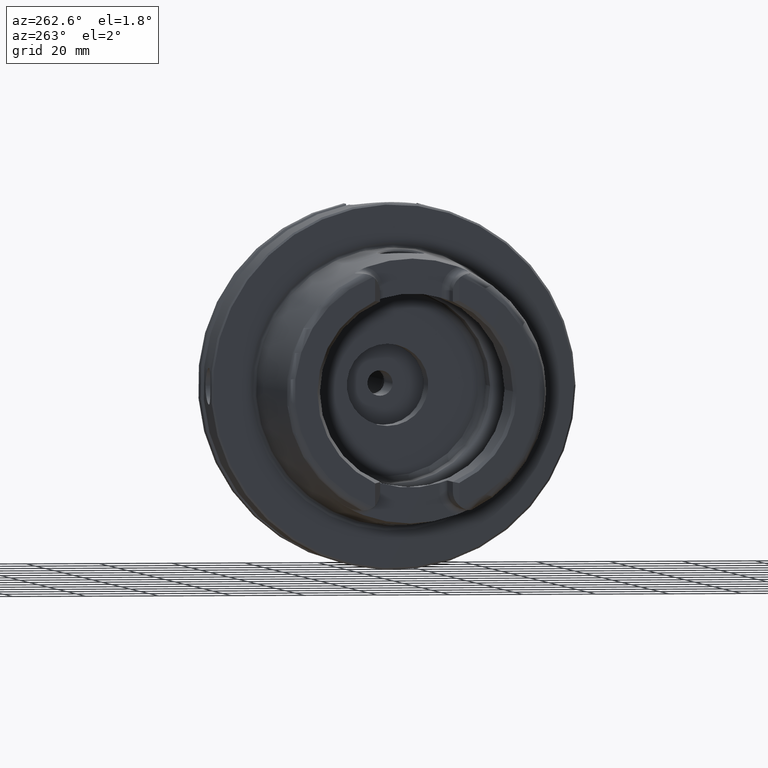
[diagram: clean part render]
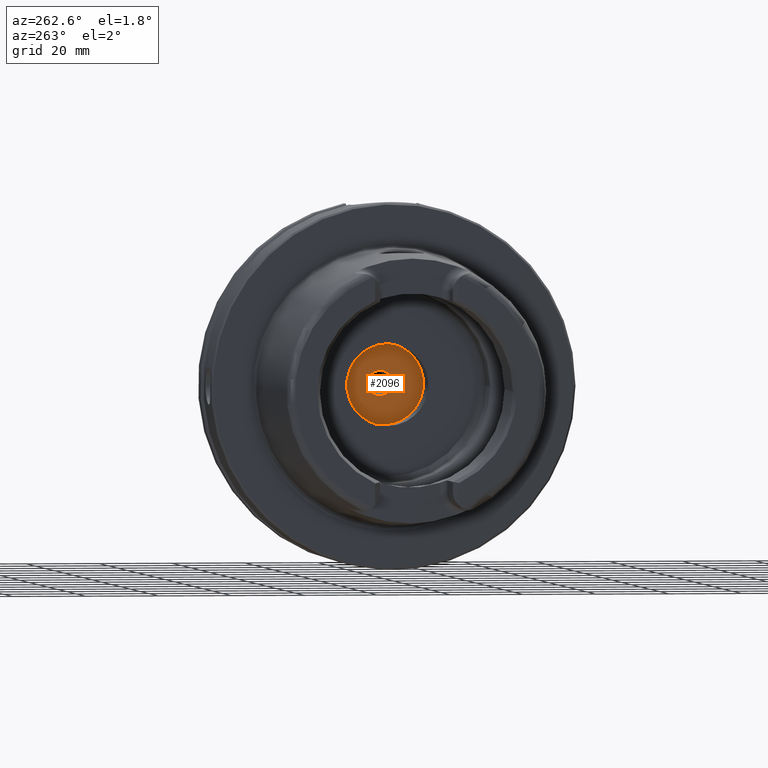
[diagram: same view with one face highlighted and labeled with its STEP entity id]
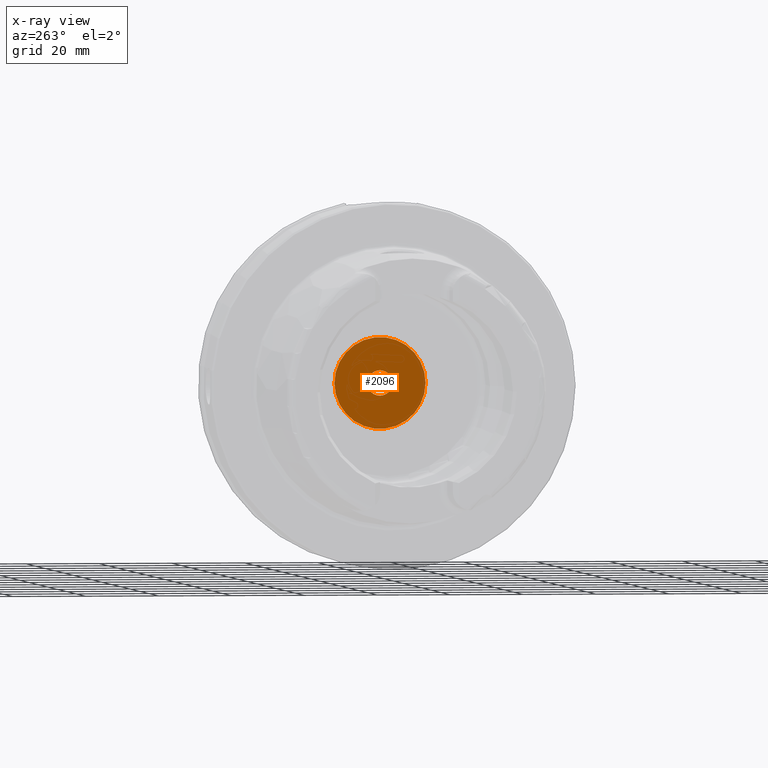
[diagram: x-ray of the same camera — body ghosted, the highlighted face saturated]
A machine part, auxiliary view. The second image highlights one B-rep face of the part: STEP entity #2096.
The next image is the same camera in x-ray: the body ghosted, the highlighted face saturated — about 0% of this face is hidden behind the body in this view.
In plain terms, the highlighted planar face has unit normal (1, 0, 0).
Its self-contained STEP definition (entity closure, byte-faithful):
#95=FACE_BOUND('',#444,.T.);
#132=PLANE('',#2360);
#312=FACE_OUTER_BOUND('',#443,.T.);
#443=EDGE_LOOP('',(#1892));
#444=EDGE_LOOP('',(#1893));
#704=CIRCLE('',#2181,3.4585);
#792=CIRCLE('',#2361,12.5);
#847=VERTEX_POINT('',#3129);
#1009=VERTEX_POINT('',#4503);
#1065=EDGE_CURVE('',#847,#847,#704,.T.);
#1312=EDGE_CURVE('',#1009,#1009,#792,.T.);
#1892=ORIENTED_EDGE('',*,*,#1312,.T.);
#1893=ORIENTED_EDGE('',*,*,#1065,.T.);
#2096=ADVANCED_FACE('',(#312,#95),#132,.F.);
#2181=AXIS2_PLACEMENT_3D('',#3131,#2504,#2505);
#2360=AXIS2_PLACEMENT_3D('',#4502,#2945,#2946);
#2361=AXIS2_PLACEMENT_3D('',#4504,#2947,#2948);
#2504=DIRECTION('center_axis',(1.,0.,0.));
#2505=DIRECTION('ref_axis',(0.,0.,-1.));
#2945=DIRECTION('center_axis',(1.,0.,0.));
#2946=DIRECTION('ref_axis',(0.,0.,-1.));
#2947=DIRECTION('center_axis',(-1.,0.,0.));
#2948=DIRECTION('ref_axis',(0.,0.,1.));
#3129=CARTESIAN_POINT('',(28.5,-4.23544095485112E-16,3.4585));
#3131=CARTESIAN_POINT('Origin',(28.5,0.,0.));
#4502=CARTESIAN_POINT('Origin',(28.5,12.5,0.));
#4503=CARTESIAN_POINT('',(28.5,-12.5,1.53080849893419E-15));
#4504=CARTESIAN_POINT('Origin',(28.5,0.,0.));